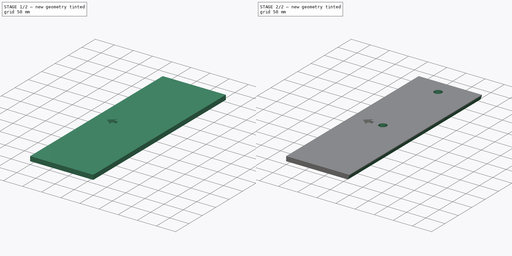
[diagram: build sequence overview — one tinted view per stage of 2, left to right]
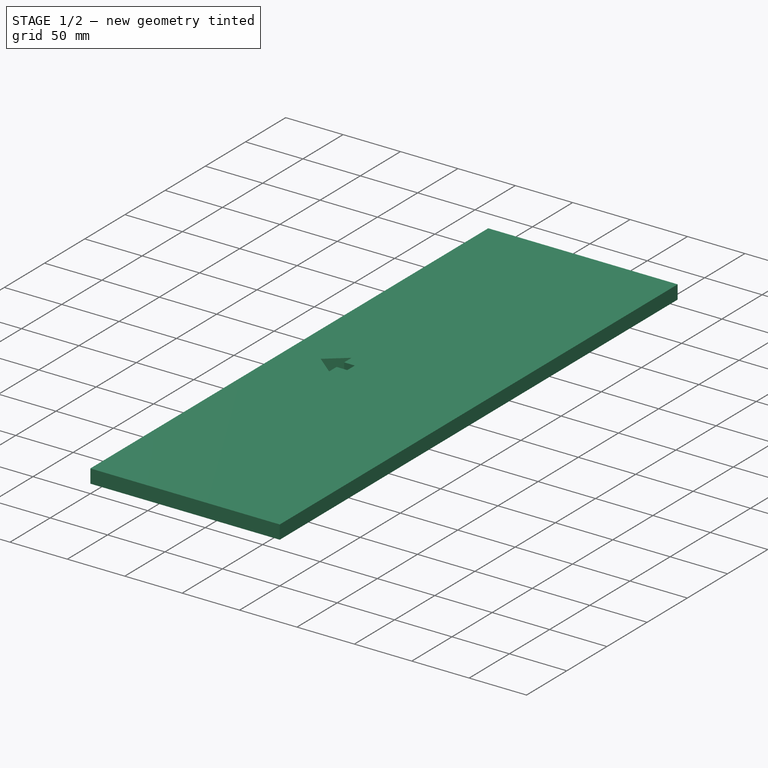
[diagram: stage 1 of 2 — iso view after this stage's code; geometry added in this stage tinted green]
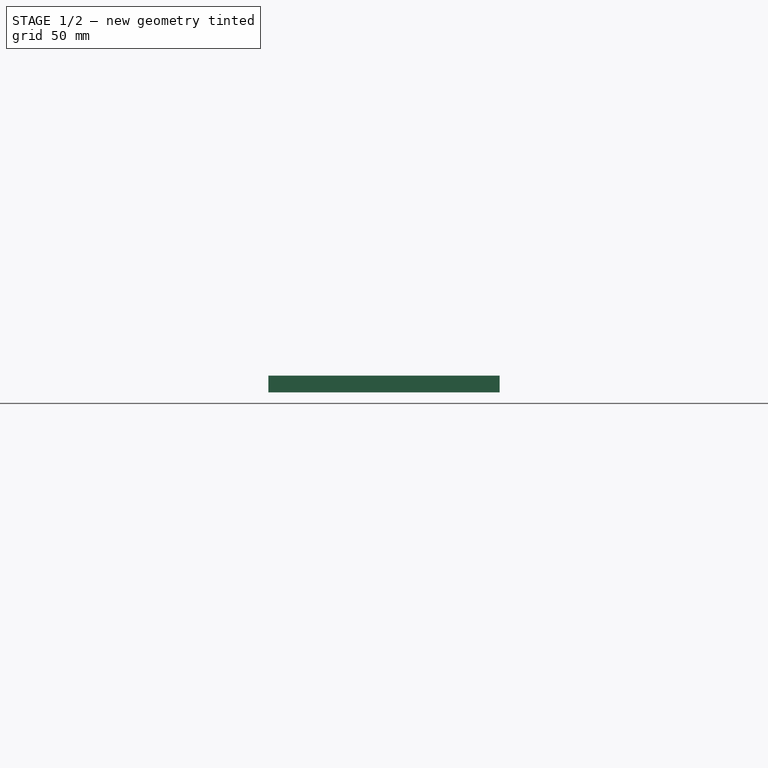
[diagram: stage 1 of 2 — front view after this stage's code; geometry added in this stage tinted green]
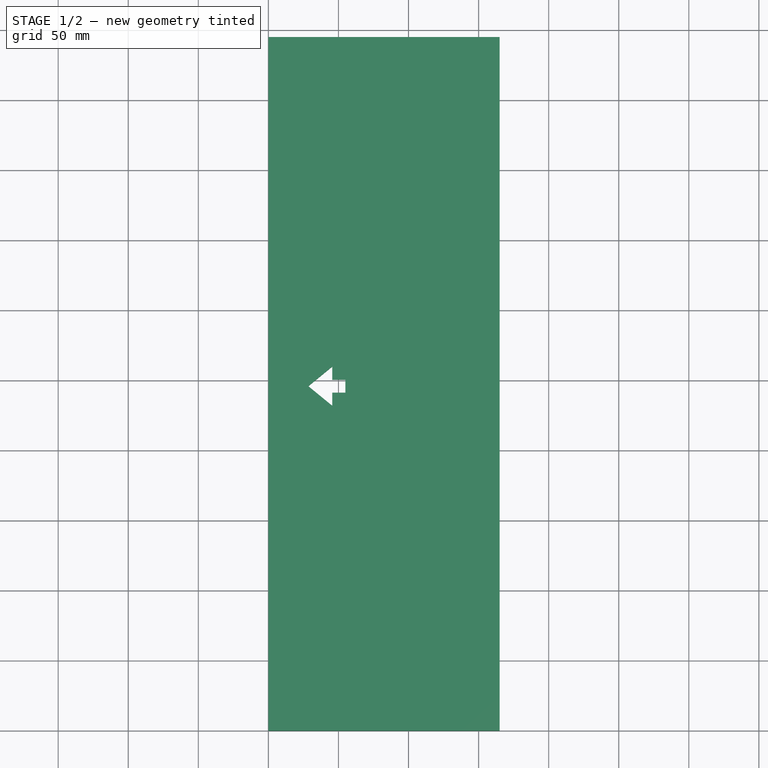
[diagram: stage 1 of 2 — top view after this stage's code; geometry added in this stage tinted green]
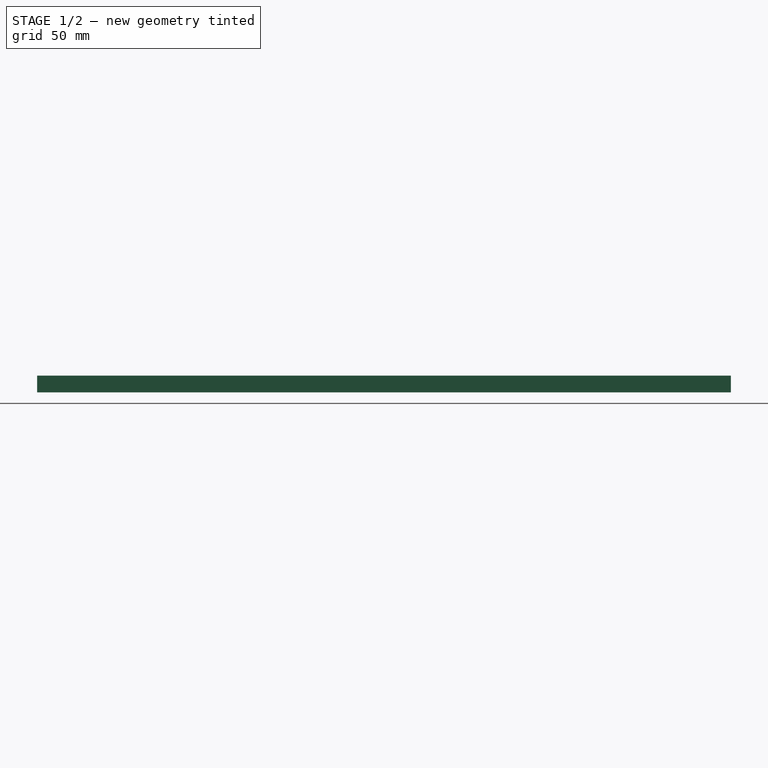
[diagram: stage 1 of 2 — right view after this stage's code; geometry added in this stage tinted green]
FCSTD DOCUMENT  (FreeCAD 0.19R14555 (Git shallow))
Label: 1001_keyboard_500_16_Duo
License: All rights reserved
LicenseURL: http://en.wikipedia.org/wiki/All_rights_reserved
objects: Sketcher::SketchObject×2, PartDesign::Pad×1, PartDesign::Pocket×1, TechDraw::DrawSVGTemplate×1, TechDraw::DrawViewPart×1, TechDraw::DrawViewDimension×1, TechDraw::DrawPage×1, Spreadsheet::Sheet×1, PartDesign::Chamfer×1, PartDesign::Body×1
note: 9 computed .brp shape members not serialized (recipe doc carries the construction recipe); baked Part::Feature solids carry a one-line shape summary decoded from their .brp

FEATURE [Sketcher::SketchObject] Sketch
  FullyConstrained = true
  MapMode = 5
  Support = -> [XY_Plane]
  expr: Constraints[5] = <<xls>>.k_w
  expr: Constraints[6] = <<xls>>.k_d
  sketch-geometry (5):
    g0: LineSegment StartX=0 StartY=495 StartZ=0 EndX=165 EndY=495 EndZ=0
    g1: LineSegment StartX=165 StartY=495 StartZ=0 EndX=165 EndY=0 EndZ=0
    g2: LineSegment StartX=165 StartY=0 StartZ=0 EndX=0 EndY=0 EndZ=0
    g3: LineSegment StartX=0 StartY=0 StartZ=0 EndX=0 EndY=247.5 EndZ=0
    g4: LineSegment StartX=0 StartY=247.5 StartZ=0 EndX=0 EndY=495 EndZ=0
  constraints (14):
    c: Coincident(g0,g1)
    c: Coincident(g1,g2)
    c: Horizontal(g0)
    c: Horizontal(g2)
    c: Vertical(g1)
    c: DistanceY(g1,g1) = 495
    c: DistanceX(g0,g0) = 165
    c: Coincident(g3,g2)
    c: Coincident(g4,g0)
    c: Equal(g3,g4)
    c: Vertical(g4)
    c: Vertical(g3)
    c: Coincident(g3,g4)
    c: Coincident(g2,g-1)
FEATURE [PartDesign::Pad] Pad
  AllowMultiFace = false
  Direction = (1,1,1)
  Length = 12
  Length2 = 100
  Profile = -> Sketch
  Type = 0
  expr: Length = <<xls>>.k_t_0
FEATURE [Sketcher::SketchObject] Sketch001
  ExternalGeometry = -> [Pad]
  FullyConstrained = false
  MapMode = 5
  Placement = pos=(0,0,12) rot=(0,0,1;0rad)
  Support = -> [Pad]
  sketch-geometry (11):
    g0: LineSegment StartX=0 StartY=12 StartZ=0 EndX=136.275 EndY=12 EndZ=0
    g1: LineSegment StartX=136.275 StartY=12 StartZ=0 EndX=136.275 EndY=0 EndZ=0
    g2: LineSegment StartX=136.275 StartY=0 StartZ=0 EndX=0 EndY=0 EndZ=0
    g3: LineSegment StartX=0 StartY=0 StartZ=0 EndX=0 EndY=12 EndZ=0
    g4: LineSegment StartX=45.609 StartY=259.906 StartZ=0 EndX=28.4763 EndY=245.88 EndZ=0
    g5: LineSegment StartX=28.4763 StartY=245.88 StartZ=0 EndX=45.609 EndY=231.855 EndZ=0
    g6: LineSegment StartX=45.609 StartY=231.855 StartZ=0 EndX=45.609 EndY=241.205 EndZ=0
    g7: LineSegment StartX=45.609 StartY=241.205 StartZ=0 EndX=54.9593 EndY=241.205 EndZ=0
    g8: LineSegment StartX=54.9593 StartY=241.205 StartZ=0 EndX=54.9593 EndY=250.556 EndZ=0
    g9: LineSegment StartX=54.9593 StartY=250.556 StartZ=0 EndX=45.609 EndY=250.556 EndZ=0
    g10: LineSegment StartX=45.609 StartY=250.556 StartZ=0 EndX=45.609 EndY=259.906 EndZ=0
  constraints (28):
    c: Coincident(g0,g1)
    c: Coincident(g1,g2)
    c: Coincident(g2,g3)
    c: Coincident(g3,g0)
    c: Horizontal(g0)
    c: Horizontal(g2)
    c: Vertical(g1)
    c: Vertical(g3)
    c: DistanceY(g3,g3) = 12
    c: PointOnObject(g2,g-2)
    c: PointOnObject(g2,g-3)
    c: Coincident(g5,g4)
    c: Coincident(g6,g5)
    c: Coincident(g7,g6)
    c: Horizontal(g7)
    c: Coincident(g8,g7)
    c: Coincident(g9,g8)
    c: Horizontal(g9)
    c: Coincident(g10,g9)
    c: Coincident(g10,g4)
    c: Vertical(g6)
    c: Vertical(g10)
    c: Equal(g10,g6)
    c: Equal(g9,g7)
    c: Vertical(g8)
    c: Equal(g5,g4)
    c: Equal(g6,g7)
    c: Equal(g9,g8)
FEATURE [PartDesign::Pocket] Pocket
  AllowMultiFace = false
  BaseFeature = -> Pad
  Length = 5
  Length2 = 100
  Profile = -> Sketch001
  Type = 1
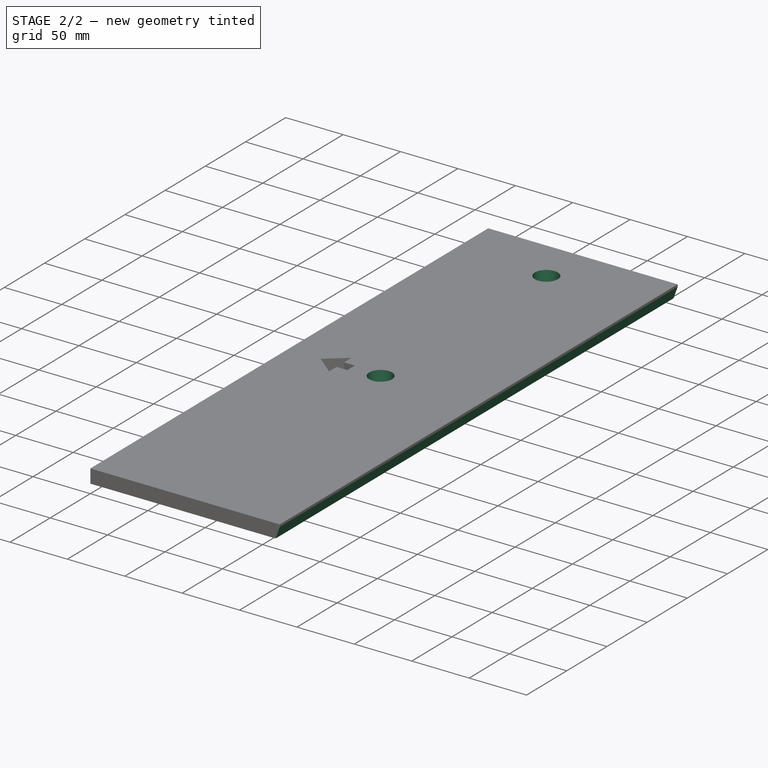
[diagram: stage 2 of 2 — iso view after this stage's code; geometry added in this stage tinted green]
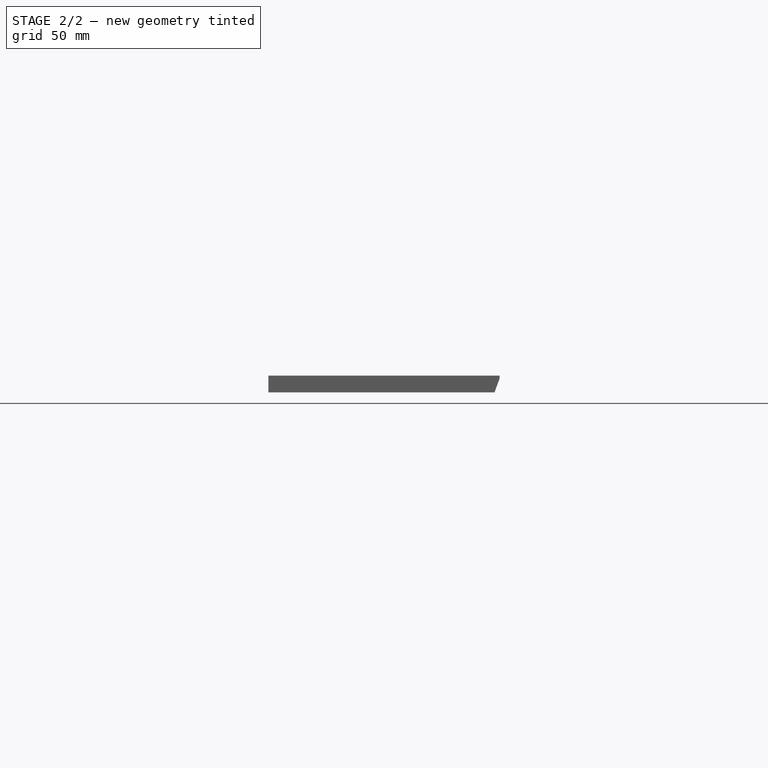
[diagram: stage 2 of 2 — front view after this stage's code; geometry added in this stage tinted green]
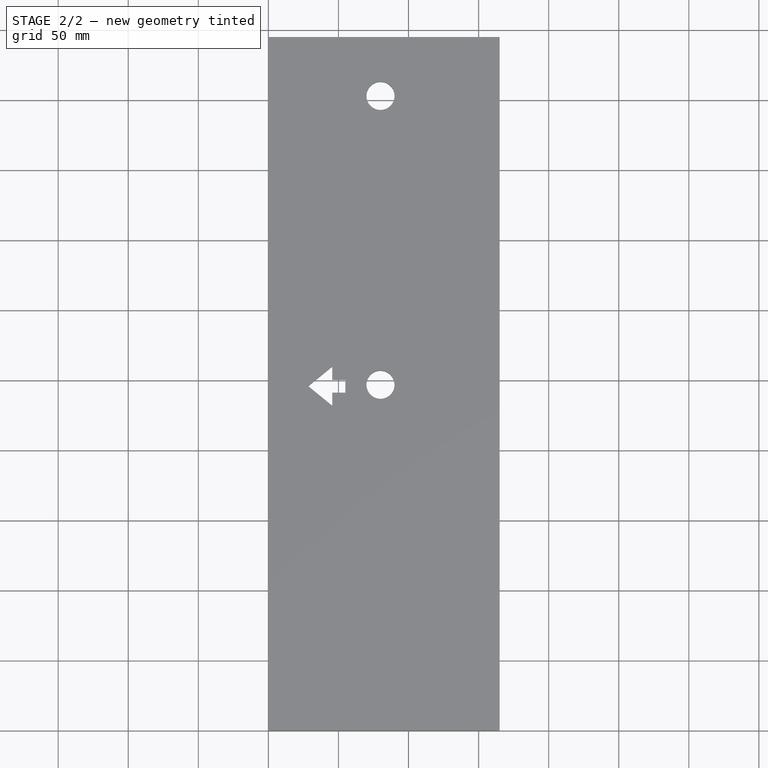
[diagram: stage 2 of 2 — top view after this stage's code; geometry added in this stage tinted green]
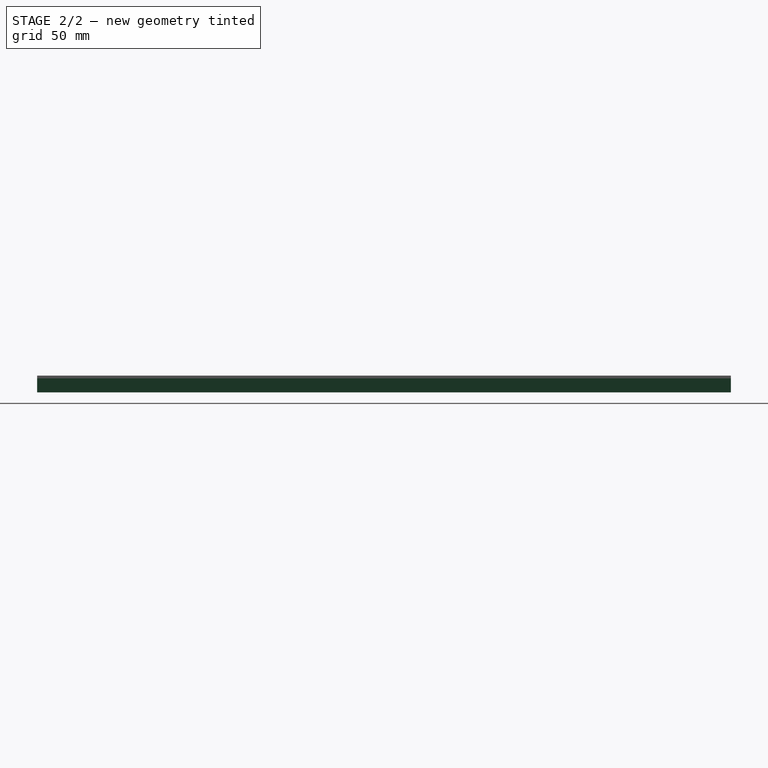
[diagram: stage 2 of 2 — right view after this stage's code; geometry added in this stage tinted green]
FEATURE [TechDraw::DrawSVGTemplate] Template
  EditableTexts = AuthorName=AUTHOR NAME; CheckDate=CHECK DATE; CreationDate=CREATION DATE; DrawingNumber=NUMBER; FC-Scale=SCALE; FC-Title=TITLE; SheetNumber=SHEET; Subtitle=SUBTITLE; SupervisorName=SUPERVISOR NAME; Weight=WEIGHT
  Height = 297
  Orientation = 1
  Width = 420
FEATURE [TechDraw::DrawViewPart] View
  CoarseView = false
  Direction = (0,0,1)
  Focus = 100
  HardHidden = false
  IsoCount = 0
  IsoHidden = false
  IsoVisible = false
  LockPosition = false
  Perspective = false
  Rotation = -90
  ScaleType = 0
  SeamHidden = false
  SeamVisible = false
  SmoothHidden = false
  SmoothVisible = false
  Source = -> [Pocket]
  X = 210
  XDirection = (1,0,0)
  Y = 148.5
FEATURE [TechDraw::DrawViewDimension] Dimension
  Arbitrary = false
  ArbitraryTolerances = false
  EqualTolerance = false
  FormatSpec = %.2f
  FormatSpecOverTolerance = %+.2f
  FormatSpecUnderTolerance = %+.2f
  Inverted = false
  LockPosition = false
  MeasureType = 1
  OverTolerance = 0
  References2D = -> [View]
  Rotation = 0
  ScaleType = 0
  TheoreticalExact = false
  Type = 1
  UnderTolerance = 0
  X = 5.19444
  Y = 91.6667
FEATURE [TechDraw::DrawPage] Page
  KeepUpdated = true
  NextBalloonIndex = 1
  ProjectionType = 0
  Template = -> Template
  Views = -> [View,Dimension]
FEATURE [Spreadsheet::Sheet] Spreadsheet  label="xls"
  cells = B3=KEABOPARD; B4=Thickness; C4=k_t_0; D4(k_t_0)=12; E4=mm; F4=Note:; G4=Plexi is 3mm; B5=Width; C5=k_w; D5(k_w)=495; E5=mm; B6=Deapth; C6=k_d; D6(k_d)=165; E6=mm; B9=Hole to Front Edge; B10=ToEdge; C10=hole_to_edge; D10(hole_to_edge)=80; E10=mm
FEATURE [PartDesign::Chamfer] Chamfer
  Angle = 20
  Base = -> Pocket [Edge9]
  BaseFeature = -> Pocket
  ChamferType = 2
  FlipDirection = false
  Size = 14
  Size2 = 5
  SupportTransform = false
FEATURE [PartDesign::Body] Body
  Group = -> [Sketch,Pad,Sketch001,Pocket,Chamfer]
  Origin = -> Origin
  Tip = -> Chamfer
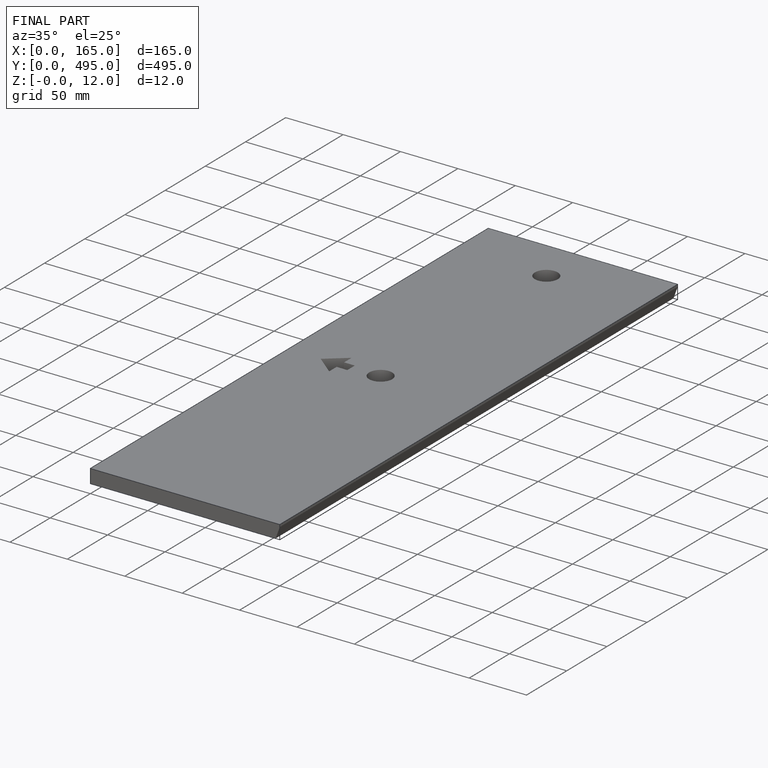
[diagram: finished part — iso view with bounding-box wireframe]
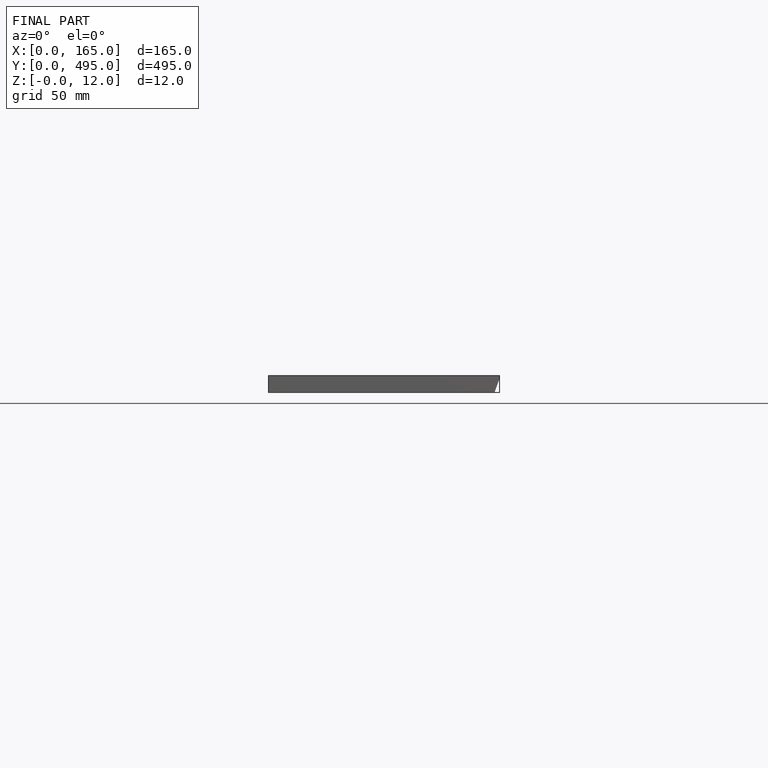
[diagram: finished part — front view with bounding-box wireframe]
